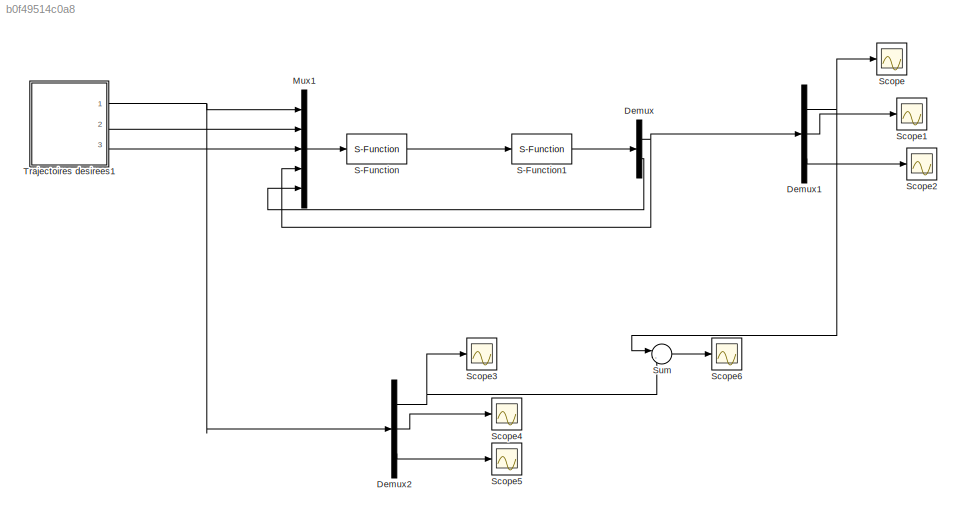
MODEL slx_b0f49514c0a8
KIND model
CONFIG AbsTol = auto
CONFIG EnableMultiTasking = off
CONFIG FixedStep = auto
CONFIG MaxStep = auto
CONFIG MinStep = auto
CONFIG RelTol = 1e-3
CONFIG SampleTimeConstraint = Unconstrained
CONFIG Solver = VariableStepAuto
CONFIG SolverName = VariableStepAuto
CONFIG StartTime = 0.0
CONFIG StopTime = 10
BLOCK [Demux] Demux
  DisplayOption = bar
  Outputs = 2
  Ports = [1, 2]
BLOCK [Demux] Demux1
  DisplayOption = bar
  Outputs = 3
  Ports = [1, 3]
BLOCK [Demux] Demux2
  DisplayOption = bar
  Outputs = 3
  Ports = [1, 3]
BLOCK [Mux] Mux1
  DisplayOption = bar
  Inputs = 5
  Ports = [5, 1]
BLOCK [S-Function] S-Function
  EnableBusSupport = off
  FunctionName = Cmd_BS
  Ports = [1, 1]
  SFcnIsStateOwnerBlock = off
  SFunctionDeploymentMode = off
BLOCK [S-Function] S-Function1
  EnableBusSupport = off
  FunctionName = Modele
  Ports = [1, 1]
  SFcnIsStateOwnerBlock = off
  SFunctionDeploymentMode = off
BLOCK [Scope] Scope
  Floating = off
  NumInputPorts = 1
  Ports = [1]
  ScopeSpecificationString = Simulink.scopes.TimeScopeBlockCfg('CurrentConfiguration', extmgr.ConfigurationSet(extmgr.Configuration('Core','General UI',true),extmgr.Configuration('Core','Source UI',true),extmgr.Configuration('Sources','WiredSimulink',true),extmgr.Configuration('Visuals','Time Domain',true,'SerializedDisplays',{struct('MinYLimReal','-0.24998','MaxYLimReal','2.24984','YLabelReal','','MinYLimMag','0.00000','MaxY...<+1666ch>
BLOCK [Scope] Scope1
  Floating = off
  NumInputPorts = 1
  Ports = [1]
  ScopeSpecificationString = Simulink.scopes.TimeScopeBlockCfg('CurrentConfiguration', extmgr.ConfigurationSet(extmgr.Configuration('Core','General UI',true),extmgr.Configuration('Core','Source UI',true),extmgr.Configuration('Sources','WiredSimulink',true,'DataLoggingVariableName','ScopeData1'),extmgr.Configuration('Visuals','Time Domain',true,'SerializedDisplays',{struct('MinYLimReal','-1.24918','MaxYLimReal','1.24991','YLab...<+1732ch>
BLOCK [Scope] Scope2
  Floating = off
  NumInputPorts = 1
  Ports = [1]
  ScopeSpecificationString = Simulink.scopes.TimeScopeBlockCfg('CurrentConfiguration', extmgr.ConfigurationSet(extmgr.Configuration('Core','General UI',true),extmgr.Configuration('Core','Source UI',true),extmgr.Configuration('Sources','WiredSimulink',true,'DataLoggingVariableName','ScopeData2'),extmgr.Configuration('Visuals','Time Domain',true,'SerializedDisplays',{struct('MinYLimReal','-12.49999','MaxYLimReal','112.4999','YL...<+1738ch>
BLOCK [Scope] Scope3
  Floating = off
  NumInputPorts = 1
  Ports = [1]
  ScopeSpecificationString = Simulink.scopes.TimeScopeBlockCfg('CurrentConfiguration', extmgr.ConfigurationSet(extmgr.Configuration('Core','General UI',true),extmgr.Configuration('Core','Source UI',true),extmgr.Configuration('Sources','WiredSimulink',true,'DataLoggingVariableName','ScopeData3'),extmgr.Configuration('Visuals','Time Domain',true,'SerializedDisplays',{struct('MinYLimReal','-0.24998','MaxYLimReal','2.24981','YLab...<+1705ch>
BLOCK [Scope] Scope4
  Floating = off
  NumInputPorts = 1
  Ports = [1]
  ScopeSpecificationString = Simulink.scopes.TimeScopeBlockCfg('CurrentConfiguration', extmgr.ConfigurationSet(extmgr.Configuration('Core','General UI',true),extmgr.Configuration('Core','Source UI',true),extmgr.Configuration('Sources','WiredSimulink',true,'DataLoggingVariableName','ScopeData4'),extmgr.Configuration('Visuals','Time Domain',true,'SerializedDisplays',{struct('MinYLimReal','-1.24915','MaxYLimReal','1.24988','YLab...<+1732ch>
BLOCK [Scope] Scope5
  Floating = off
  NumInputPorts = 1
  Ports = [1]
  ScopeSpecificationString = Simulink.scopes.TimeScopeBlockCfg('CurrentConfiguration', extmgr.ConfigurationSet(extmgr.Configuration('Core','General UI',true),extmgr.Configuration('Core','Source UI',true),extmgr.Configuration('Sources','WiredSimulink',true,'DataLoggingVariableName','ScopeData5'),extmgr.Configuration('Visuals','Time Domain',true,'SerializedDisplays',{struct('MinYLimReal','-12.5','MaxYLimReal','112.5','YLabelRea...<+1718ch>
BLOCK [Scope] Scope6
  Floating = off
  NumInputPorts = 1
  Ports = [1]
  ScopeSpecificationString = Simulink.scopes.TimeScopeBlockCfg('CurrentConfiguration', extmgr.ConfigurationSet(extmgr.Configuration('Core','General UI',true),extmgr.Configuration('Core','Source UI',true),extmgr.Configuration('Sources','WiredSimulink',true,'DataLoggingVariableName','ScopeData6'),extmgr.Configuration('Visuals','Time Domain',true,'SerializedDisplays',{struct('MinYLimReal','-0.000031','MaxYLimReal','0.000031','YL...<+1735ch>
BLOCK [Sum] Sum
  IconShape = round
  InputSameDT = off
  Inputs = |-+
  OutDataTypeStr = Inherit: Inherit via internal rule
  Ports = [2, 1]
  SaturateOnIntegerOverflow = off
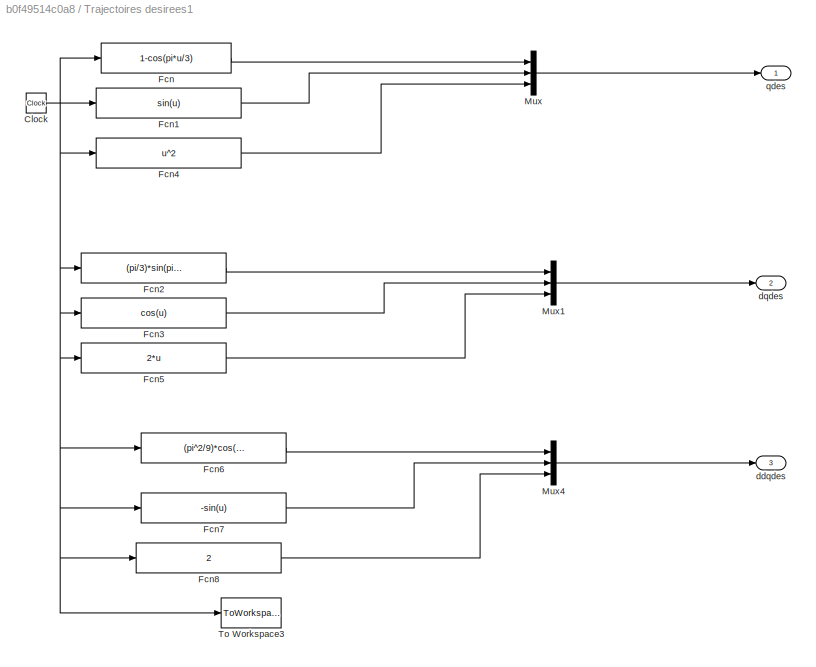
BLOCK [SubSystem] Trajectoires desirees1
  Ports = [0, 3]
  RequestExecContextInheritance = off
BLOCK [Clock] Trajectoires desirees1/Clock
BLOCK [Fcn] Trajectoires desirees1/Fcn
  Expr = 1-cos(pi*u/3)
BLOCK [Fcn] Trajectoires desirees1/Fcn1
  Expr = sin(u)
BLOCK [Fcn] Trajectoires desirees1/Fcn2
  Expr = (pi/3)*sin(pi*u/3)
BLOCK [Fcn] Trajectoires desirees1/Fcn3
  Expr = cos(u)
BLOCK [Fcn] Trajectoires desirees1/Fcn4
  Expr = u^2
BLOCK [Fcn] Trajectoires desirees1/Fcn5
  Expr = 2*u
BLOCK [Fcn] Trajectoires desirees1/Fcn6
  Expr = (pi^2/9)*cos(pi*u/3)
BLOCK [Fcn] Trajectoires desirees1/Fcn7
  Expr = -sin(u)
BLOCK [Fcn] Trajectoires desirees1/Fcn8
  Expr = 2
BLOCK [Mux] Trajectoires desirees1/Mux
  DisplayOption = bar
  Inputs = 3
  Ports = [3, 1]
BLOCK [Mux] Trajectoires desirees1/Mux1
  DisplayOption = bar
  Inputs = 3
  Ports = [3, 1]
BLOCK [Mux] Trajectoires desirees1/Mux4
  DisplayOption = bar
  Inputs = 3
  Ports = [3, 1]
BLOCK [ToWorkspace] Trajectoires desirees1/To Workspace3
  FixptAsFi = on
  MaxDataPoints = inf
  Ports = [1]
  SampleTime = -1
  Save2DSignal = 3-D array (concatenate along third dimension)
  VariableName = t
BLOCK [Outport] Trajectoires desirees1/ddqdes
  IconDisplay = Port number
  Port = 3
BLOCK [Outport] Trajectoires desirees1/dqdes
  IconDisplay = Port number
  Port = 2
BLOCK [Outport] Trajectoires desirees1/qdes
  IconDisplay = Port number
NET Demux1:1 -> Scope:1, Sum:1
LINE Demux1:2 -> Scope1:1
LINE Demux1:3 -> Scope2:1
NET Demux2:1 -> Scope3:1, Sum:2
LINE Demux2:2 -> Scope4:1
LINE Demux2:3 -> Scope5:1
NET Demux:1 -> Demux1:1, Mux1:4
LINE Demux:2 -> Mux1:5
LINE Mux1:1 -> S-Function:1
LINE S-Function1:1 -> Demux:1
LINE S-Function:1 -> S-Function1:1
LINE Sum:1 -> Scope6:1
NET Trajectoires desirees1/Clock:1 -> Trajectoires desirees1/Fcn1:1, Trajectoires desirees1/Fcn2:1, Trajectoires desirees1/Fcn3:1, Trajectoires desirees1/Fcn4:1, Trajectoires desirees1/Fcn5:1, Trajectoires desirees1/Fcn6:1, Trajectoires desirees1/Fcn7:1, Trajectoires desirees1/Fcn8:1, Trajectoires desirees1/Fcn:1, Trajectoires desirees1/To Workspace3:1
LINE Trajectoires desirees1/Fcn1:1 -> Trajectoires desirees1/Mux:2
LINE Trajectoires desirees1/Fcn2:1 -> Trajectoires desirees1/Mux1:1
LINE Trajectoires desirees1/Fcn3:1 -> Trajectoires desirees1/Mux1:2
LINE Trajectoires desirees1/Fcn4:1 -> Trajectoires desirees1/Mux:3
LINE Trajectoires desirees1/Fcn5:1 -> Trajectoires desirees1/Mux1:3
LINE Trajectoires desirees1/Fcn6:1 -> Trajectoires desirees1/Mux4:1
LINE Trajectoires desirees1/Fcn7:1 -> Trajectoires desirees1/Mux4:2
LINE Trajectoires desirees1/Fcn8:1 -> Trajectoires desirees1/Mux4:3
LINE Trajectoires desirees1/Fcn:1 -> Trajectoires desirees1/Mux:1
LINE Trajectoires desirees1/Mux1:1 -> Trajectoires desirees1/dqdes:1
LINE Trajectoires desirees1/Mux4:1 -> Trajectoires desirees1/ddqdes:1
LINE Trajectoires desirees1/Mux:1 -> Trajectoires desirees1/qdes:1
NET Trajectoires desirees1:1 -> Demux2:1, Mux1:1
LINE Trajectoires desirees1:2 -> Mux1:2
LINE Trajectoires desirees1:3 -> Mux1:3
note: NET lines group one-source signal fan-out (src -> all destinations, sorted); 1:1 wires keep LINE
